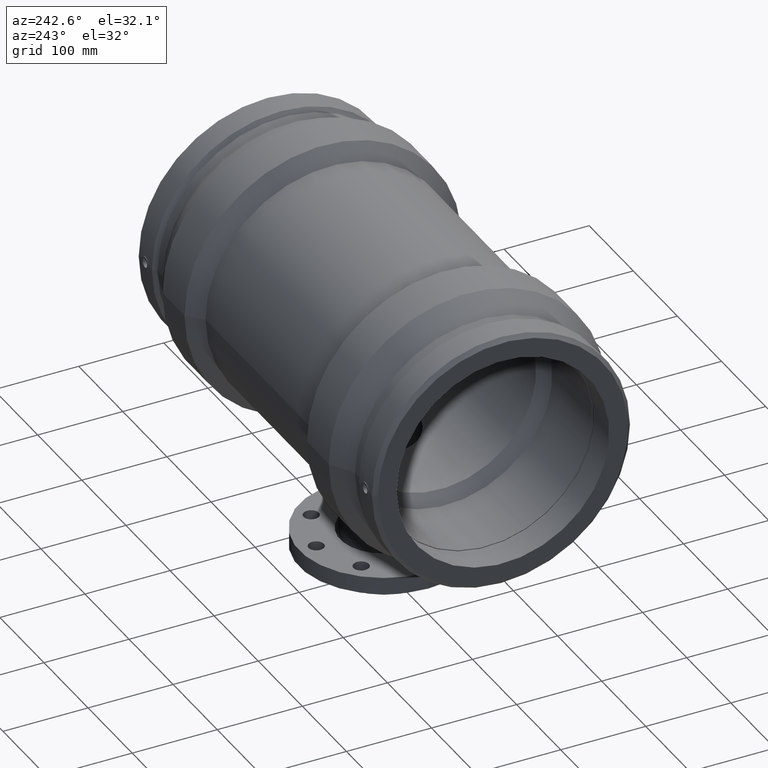
[diagram: clean part render]
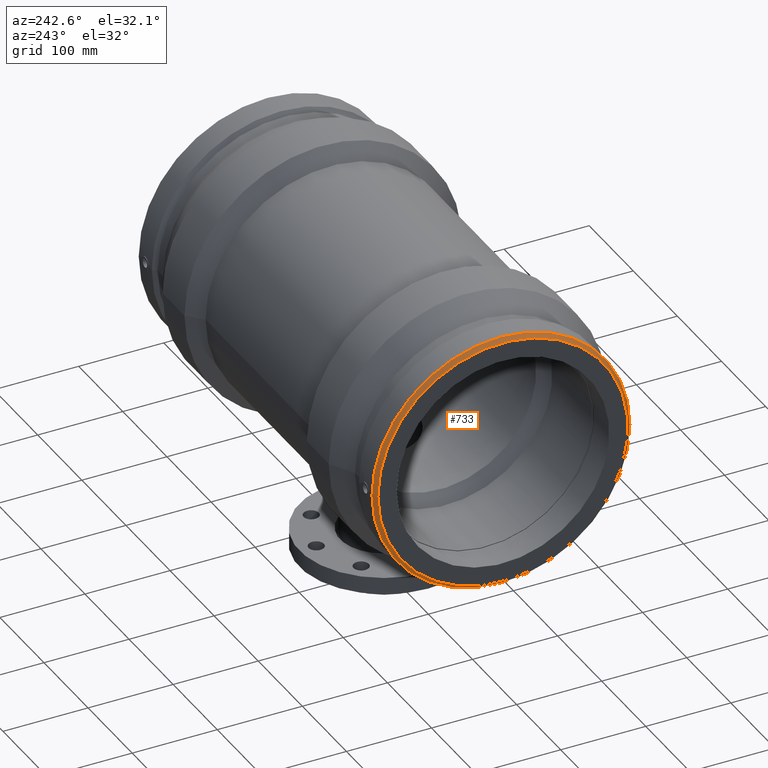
[diagram: same view with one face highlighted and labeled with its STEP entity id]
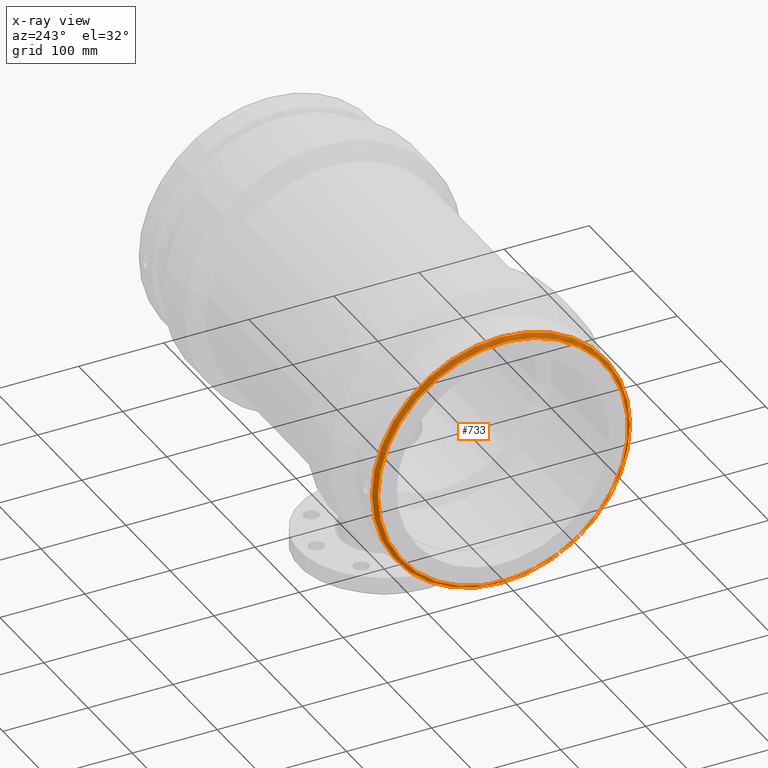
[diagram: x-ray of the same camera — body ghosted, the highlighted face saturated]
A machine part, auxiliary view. The second image highlights one B-rep face of the part: STEP entity #733.
The next image is the same camera in x-ray: the body ghosted, the highlighted face saturated — about 0% of this face is hidden behind the body in this view.
In plain terms, the highlighted conical surface has half-angle 45 deg.
Its self-contained STEP definition (entity closure, byte-faithful):
#18=CONICAL_SURFACE('',#834,149.31615,44.9999999999998);
#92=FACE_BOUND('',#358,.T.);
#159=CIRCLE('',#832,147.0423);
#161=CIRCLE('',#835,151.59);
#249=FACE_OUTER_BOUND('',#357,.T.);
#357=EDGE_LOOP('',(#643));
#358=EDGE_LOOP('',(#644));
#462=VERTEX_POINT('',#1648);
#464=VERTEX_POINT('',#1653);
#532=EDGE_CURVE('',#462,#462,#159,.T.);
#534=EDGE_CURVE('',#464,#464,#161,.T.);
#643=ORIENTED_EDGE('',*,*,#532,.T.);
#644=ORIENTED_EDGE('',*,*,#534,.F.);
#733=ADVANCED_FACE('',(#249,#92),#18,.T.);
#832=AXIS2_PLACEMENT_3D('',#1649,#1029,#1030);
#834=AXIS2_PLACEMENT_3D('',#1652,#1033,#1034);
#835=AXIS2_PLACEMENT_3D('',#1654,#1035,#1036);
#1029=DIRECTION('center_axis',(1.,0.,0.));
#1030=DIRECTION('ref_axis',(0.,0.,-1.));
#1033=DIRECTION('center_axis',(1.,0.,0.));
#1034=DIRECTION('ref_axis',(0.,1.,0.));
#1035=DIRECTION('center_axis',(1.,0.,0.));
#1036=DIRECTION('ref_axis',(0.,0.,-1.));
#1648=CARTESIAN_POINT('',(-269.,147.0423,0.));
#1649=CARTESIAN_POINT('Origin',(-269.,0.,0.));
#1652=CARTESIAN_POINT('Origin',(-266.72615,0.,0.));
#1653=CARTESIAN_POINT('',(-264.4523,151.59,0.));
#1654=CARTESIAN_POINT('Origin',(-264.4523,0.,0.));